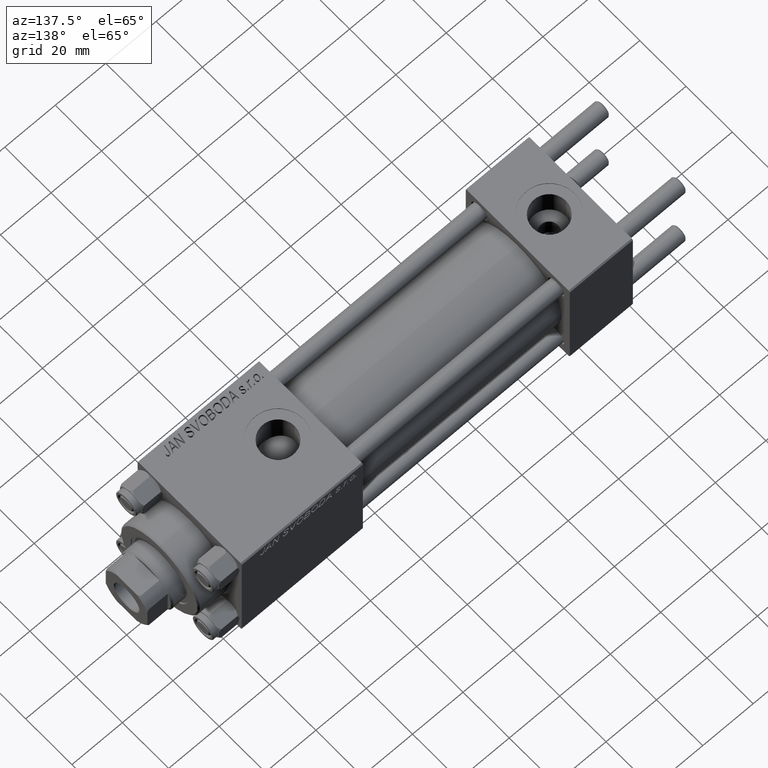
[diagram: clean part render]
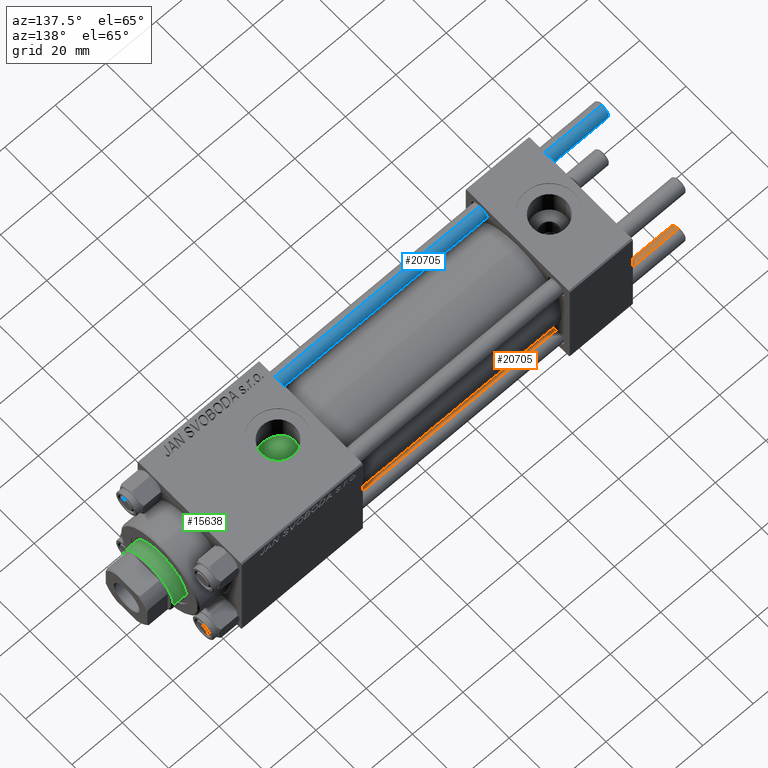
[diagram: same view with three faces highlighted in distinct colors, each labeled with its STEP entity id]
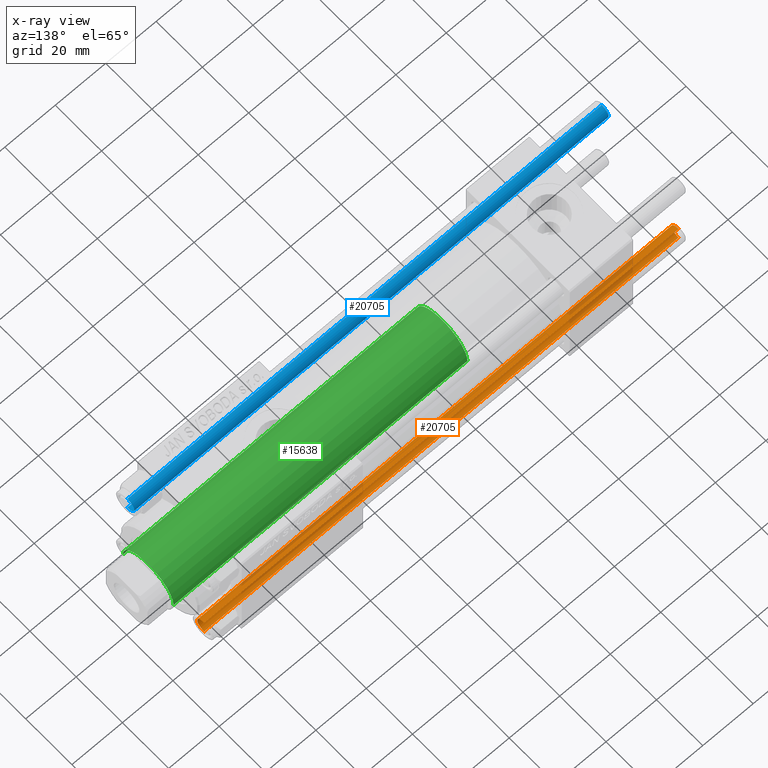
[diagram: x-ray of the same camera — body ghosted, the three highlighted faces saturated]
A machine part, auxiliary view with three faces highlighted in distinct colors.
The next image is the same camera in x-ray (body ghosted, the three faces saturated) — at least one of them is partly hidden behind the body in this view.
Their STEP definitions:

[orange] entity #20705 — the highlighted cylindrical surface (edge-blend (fillet) strip) has radius 3 mm, axis along (1, 0, -0).
#3462 = VERTEX_POINT ( 'NONE', #12357 ) ;
#3699 = DIRECTION ( 'NONE',  ( 0.000000000000000000, 0.000000000000000000, -1.000000000000000000 ) ) ;
#7371 = CARTESIAN_POINT ( 'NONE',  ( 0.000000000000000000, 0.000000000000000000, 0.5000000000000004441 ) ) ;
#11946 = AXIS2_PLACEMENT_3D ( 'NONE', #33963, #3699, #19104 ) ;
#12357 = CARTESIAN_POINT ( 'NONE',  ( 3.000000000000000444, 3.673940397442060361E-16, 0.5000000000000004441 ) ) ;
#13078 = EDGE_CURVE ( 'NONE', #14205, #3462, #17227, .T. ) ;
#14149 = FACE_OUTER_BOUND ( 'NONE', #33163, .T. ) ;
#14205 = VERTEX_POINT ( 'NONE', #14424 ) ;
#14424 = CARTESIAN_POINT ( 'NONE',  ( 3.000000000000000444, 3.673940397442060361E-16, 188.5000000000000284 ) ) ;
#15988 = CIRCLE ( 'NONE', #11946, 3.000000000000000444 ) ;
#16230 = ORIENTED_EDGE ( 'NONE', *, *, #26397, .T. ) ;
#16856 = DIRECTION ( 'NONE',  ( -0.000000000000000000, -0.000000000000000000, -1.000000000000000000 ) ) ;
#17227 = LINE ( 'NONE', #32091, #48680 ) ;
#17456 = DIRECTION ( 'NONE',  ( -0.000000000000000000, -0.000000000000000000, -1.000000000000000000 ) ) ;
#18242 = DIRECTION ( 'NONE',  ( -0.000000000000000000, -0.000000000000000000, 1.000000000000000000 ) ) ;
#19104 = DIRECTION ( 'NONE',  ( 1.000000000000000000, 0.000000000000000000, 0.000000000000000000 ) ) ;
#20705 = ADVANCED_FACE ( 'NONE', ( #14149 ), #44657, .T. ) ;
#20859 = ORIENTED_EDGE ( 'NONE', *, *, #13078, .F. ) ;
#22376 = ORIENTED_EDGE ( 'NONE', *, *, #46407, .T. ) ;
#23236 = CIRCLE ( 'NONE', #49837, 3.000000000000000444 ) ;
#25199 = EDGE_CURVE ( 'NONE', #14205, #32391, #15988, .T. ) ;
#25630 = VERTEX_POINT ( 'NONE', #38932 ) ;
#26397 = EDGE_CURVE ( 'NONE', #25630, #3462, #23236, .T. ) ;
#26417 = ORIENTED_EDGE ( 'NONE', *, *, #25199, .T. ) ;
#30578 = CARTESIAN_POINT ( 'NONE',  ( -3.000000000000000444, 0.000000000000000000, 188.5000000000000284 ) ) ;
#32091 = CARTESIAN_POINT ( 'NONE',  ( 3.000000000000000444, 3.673940397442060361E-16, 189.0000000000000000 ) ) ;
#32391 = VERTEX_POINT ( 'NONE', #30578 ) ;
#33163 = EDGE_LOOP ( 'NONE', ( #20859, #26417, #22376, #16230 ) ) ;
#33207 = LINE ( 'NONE', #48584, #39309 ) ;
#33850 = DIRECTION ( 'NONE',  ( 1.000000000000000000, 0.000000000000000000, 0.000000000000000000 ) ) ;
#33963 = CARTESIAN_POINT ( 'NONE',  ( 0.000000000000000000, 0.000000000000000000, 188.5000000000000284 ) ) ;
#35933 = AXIS2_PLACEMENT_3D ( 'NONE', #36599, #17456, #40869 ) ;
#36599 = CARTESIAN_POINT ( 'NONE',  ( 0.000000000000000000, 0.000000000000000000, 189.0000000000000000 ) ) ;
#38932 = CARTESIAN_POINT ( 'NONE',  ( -3.000000000000000444, 0.000000000000000000, 0.5000000000000004441 ) ) ;
#39309 = VECTOR ( 'NONE', #16856, 1000.000000000000000 ) ;
#39896 = DIRECTION ( 'NONE',  ( -0.000000000000000000, -0.000000000000000000, -1.000000000000000000 ) ) ;
#40869 = DIRECTION ( 'NONE',  ( -1.000000000000000000, 0.000000000000000000, 0.000000000000000000 ) ) ;
#44657 = CYLINDRICAL_SURFACE ( 'NONE', #35933, 3.000000000000000444 ) ;
#46407 = EDGE_CURVE ( 'NONE', #32391, #25630, #33207, .T. ) ;
#48584 = CARTESIAN_POINT ( 'NONE',  ( -3.000000000000000444, 0.000000000000000000, 189.0000000000000000 ) ) ;
#48680 = VECTOR ( 'NONE', #39896, 1000.000000000000000 ) ;
#49837 = AXIS2_PLACEMENT_3D ( 'NONE', #7371, #18242, #33850 ) ;

[blue] entity #20705 — the highlighted cylindrical surface (edge-blend (fillet) strip) has radius 3 mm, axis along (1, -0, 0).
#3462 = VERTEX_POINT ( 'NONE', #12357 ) ;
#3699 = DIRECTION ( 'NONE',  ( 0.000000000000000000, 0.000000000000000000, -1.000000000000000000 ) ) ;
#7371 = CARTESIAN_POINT ( 'NONE',  ( 0.000000000000000000, 0.000000000000000000, 0.5000000000000004441 ) ) ;
#11946 = AXIS2_PLACEMENT_3D ( 'NONE', #33963, #3699, #19104 ) ;
#12357 = CARTESIAN_POINT ( 'NONE',  ( 3.000000000000000444, 3.673940397442060361E-16, 0.5000000000000004441 ) ) ;
#13078 = EDGE_CURVE ( 'NONE', #14205, #3462, #17227, .T. ) ;
#14149 = FACE_OUTER_BOUND ( 'NONE', #33163, .T. ) ;
#14205 = VERTEX_POINT ( 'NONE', #14424 ) ;
#14424 = CARTESIAN_POINT ( 'NONE',  ( 3.000000000000000444, 3.673940397442060361E-16, 188.5000000000000284 ) ) ;
#15988 = CIRCLE ( 'NONE', #11946, 3.000000000000000444 ) ;
#16230 = ORIENTED_EDGE ( 'NONE', *, *, #26397, .T. ) ;
#16856 = DIRECTION ( 'NONE',  ( -0.000000000000000000, -0.000000000000000000, -1.000000000000000000 ) ) ;
#17227 = LINE ( 'NONE', #32091, #48680 ) ;
#17456 = DIRECTION ( 'NONE',  ( -0.000000000000000000, -0.000000000000000000, -1.000000000000000000 ) ) ;
#18242 = DIRECTION ( 'NONE',  ( -0.000000000000000000, -0.000000000000000000, 1.000000000000000000 ) ) ;
#19104 = DIRECTION ( 'NONE',  ( 1.000000000000000000, 0.000000000000000000, 0.000000000000000000 ) ) ;
#20705 = ADVANCED_FACE ( 'NONE', ( #14149 ), #44657, .T. ) ;
#20859 = ORIENTED_EDGE ( 'NONE', *, *, #13078, .F. ) ;
#22376 = ORIENTED_EDGE ( 'NONE', *, *, #46407, .T. ) ;
#23236 = CIRCLE ( 'NONE', #49837, 3.000000000000000444 ) ;
#25199 = EDGE_CURVE ( 'NONE', #14205, #32391, #15988, .T. ) ;
#25630 = VERTEX_POINT ( 'NONE', #38932 ) ;
#26397 = EDGE_CURVE ( 'NONE', #25630, #3462, #23236, .T. ) ;
#26417 = ORIENTED_EDGE ( 'NONE', *, *, #25199, .T. ) ;
#30578 = CARTESIAN_POINT ( 'NONE',  ( -3.000000000000000444, 0.000000000000000000, 188.5000000000000284 ) ) ;
#32091 = CARTESIAN_POINT ( 'NONE',  ( 3.000000000000000444, 3.673940397442060361E-16, 189.0000000000000000 ) ) ;
#32391 = VERTEX_POINT ( 'NONE', #30578 ) ;
#33163 = EDGE_LOOP ( 'NONE', ( #20859, #26417, #22376, #16230 ) ) ;
#33207 = LINE ( 'NONE', #48584, #39309 ) ;
#33850 = DIRECTION ( 'NONE',  ( 1.000000000000000000, 0.000000000000000000, 0.000000000000000000 ) ) ;
#33963 = CARTESIAN_POINT ( 'NONE',  ( 0.000000000000000000, 0.000000000000000000, 188.5000000000000284 ) ) ;
#35933 = AXIS2_PLACEMENT_3D ( 'NONE', #36599, #17456, #40869 ) ;
#36599 = CARTESIAN_POINT ( 'NONE',  ( 0.000000000000000000, 0.000000000000000000, 189.0000000000000000 ) ) ;
#38932 = CARTESIAN_POINT ( 'NONE',  ( -3.000000000000000444, 0.000000000000000000, 0.5000000000000004441 ) ) ;
#39309 = VECTOR ( 'NONE', #16856, 1000.000000000000000 ) ;
#39896 = DIRECTION ( 'NONE',  ( -0.000000000000000000, -0.000000000000000000, -1.000000000000000000 ) ) ;
#40869 = DIRECTION ( 'NONE',  ( -1.000000000000000000, 0.000000000000000000, 0.000000000000000000 ) ) ;
#44657 = CYLINDRICAL_SURFACE ( 'NONE', #35933, 3.000000000000000444 ) ;
#46407 = EDGE_CURVE ( 'NONE', #32391, #25630, #33207, .T. ) ;
#48584 = CARTESIAN_POINT ( 'NONE',  ( -3.000000000000000444, 0.000000000000000000, 189.0000000000000000 ) ) ;
#48680 = VECTOR ( 'NONE', #39896, 1000.000000000000000 ) ;
#49837 = AXIS2_PLACEMENT_3D ( 'NONE', #7371, #18242, #33850 ) ;

[green] entity #15638 — the highlighted cylindrical surface (partial cylindrical patch) has radius 11 mm, axis along (-1, 0, 0).
#636 = EDGE_CURVE ( 'NONE', #18004, #28402, #20227, .T. ) ;
#1174 = ORIENTED_EDGE ( 'NONE', *, *, #636, .T. ) ;
#1243 = AXIS2_PLACEMENT_3D ( 'NONE', #47293, #43510, #24358 ) ;
#3325 = CARTESIAN_POINT ( 'NONE',  ( 0.000000000000000000, 0.000000000000000000, 146.5000000000000000 ) ) ;
#4486 = AXIS2_PLACEMENT_3D ( 'NONE', #45718, #29604, #6650 ) ;
#6029 = CARTESIAN_POINT ( 'NONE',  ( 11.00000000000000000, 1.347111479062088405E-15, 146.5000000000000000 ) ) ;
#6650 = DIRECTION ( 'NONE',  ( -1.000000000000000000, 0.000000000000000000, 0.000000000000000000 ) ) ;
#7984 = CARTESIAN_POINT ( 'NONE',  ( 11.00000000000000000, 1.347111479062088405E-15, 30.00000000000000000 ) ) ;
#8448 = CARTESIAN_POINT ( 'NONE',  ( 11.00000000000000000, 1.347111479062088405E-15, 147.0000000000000284 ) ) ;
#12547 = ORIENTED_EDGE ( 'NONE', *, *, #42177, .T. ) ;
#13969 = VERTEX_POINT ( 'NONE', #7984 ) ;
#14870 = EDGE_CURVE ( 'NONE', #33706, #13969, #24614, .T. ) ;
#15228 = FACE_OUTER_BOUND ( 'NONE', #29381, .T. ) ;
#15638 = ADVANCED_FACE ( 'NONE', ( #15228 ), #33873, .T. ) ;
#18004 = VERTEX_POINT ( 'NONE', #6029 ) ;
#20227 = CIRCLE ( 'NONE', #48413, 11.00000000000000000 ) ;
#20294 = DIRECTION ( 'NONE',  ( -0.000000000000000000, -0.000000000000000000, -1.000000000000000000 ) ) ;
#21721 = DIRECTION ( 'NONE',  ( -0.000000000000000000, -0.000000000000000000, -1.000000000000000000 ) ) ;
#24358 = DIRECTION ( 'NONE',  ( 1.000000000000000000, 0.000000000000000000, 0.000000000000000000 ) ) ;
#24584 = ORIENTED_EDGE ( 'NONE', *, *, #14870, .T. ) ;
#24614 = CIRCLE ( 'NONE', #1243, 11.00000000000000000 ) ;
#25258 = LINE ( 'NONE', #40622, #47227 ) ;
#27482 = EDGE_CURVE ( 'NONE', #18004, #13969, #47261, .T. ) ;
#28402 = VERTEX_POINT ( 'NONE', #40509 ) ;
#29381 = EDGE_LOOP ( 'NONE', ( #47514, #1174, #12547, #24584 ) ) ;
#29604 = DIRECTION ( 'NONE',  ( -0.000000000000000000, -0.000000000000000000, -1.000000000000000000 ) ) ;
#30490 = CARTESIAN_POINT ( 'NONE',  ( -11.00000000000000000, 0.000000000000000000, 30.00000000000000000 ) ) ;
#33706 = VERTEX_POINT ( 'NONE', #30490 ) ;
#33873 = CYLINDRICAL_SURFACE ( 'NONE', #4486, 11.00000000000000000 ) ;
#34087 = DIRECTION ( 'NONE',  ( 0.000000000000000000, 0.000000000000000000, -1.000000000000000000 ) ) ;
#38119 = DIRECTION ( 'NONE',  ( 1.000000000000000000, 0.000000000000000000, 0.000000000000000000 ) ) ;
#40509 = CARTESIAN_POINT ( 'NONE',  ( -11.00000000000000000, 0.000000000000000000, 146.5000000000000000 ) ) ;
#40622 = CARTESIAN_POINT ( 'NONE',  ( -11.00000000000000000, 0.000000000000000000, 147.0000000000000284 ) ) ;
#42177 = EDGE_CURVE ( 'NONE', #28402, #33706, #25258, .T. ) ;
#43510 = DIRECTION ( 'NONE',  ( 0.000000000000000000, 0.000000000000000000, 1.000000000000000000 ) ) ;
#44216 = VECTOR ( 'NONE', #20294, 1000.000000000000000 ) ;
#45718 = CARTESIAN_POINT ( 'NONE',  ( 0.000000000000000000, 0.000000000000000000, 147.0000000000000284 ) ) ;
#47227 = VECTOR ( 'NONE', #21721, 1000.000000000000000 ) ;
#47261 = LINE ( 'NONE', #8448, #44216 ) ;
#47293 = CARTESIAN_POINT ( 'NONE',  ( 0.000000000000000000, 0.000000000000000000, 30.00000000000000000 ) ) ;
#47514 = ORIENTED_EDGE ( 'NONE', *, *, #27482, .F. ) ;
#48413 = AXIS2_PLACEMENT_3D ( 'NONE', #3325, #34087, #38119 ) ;